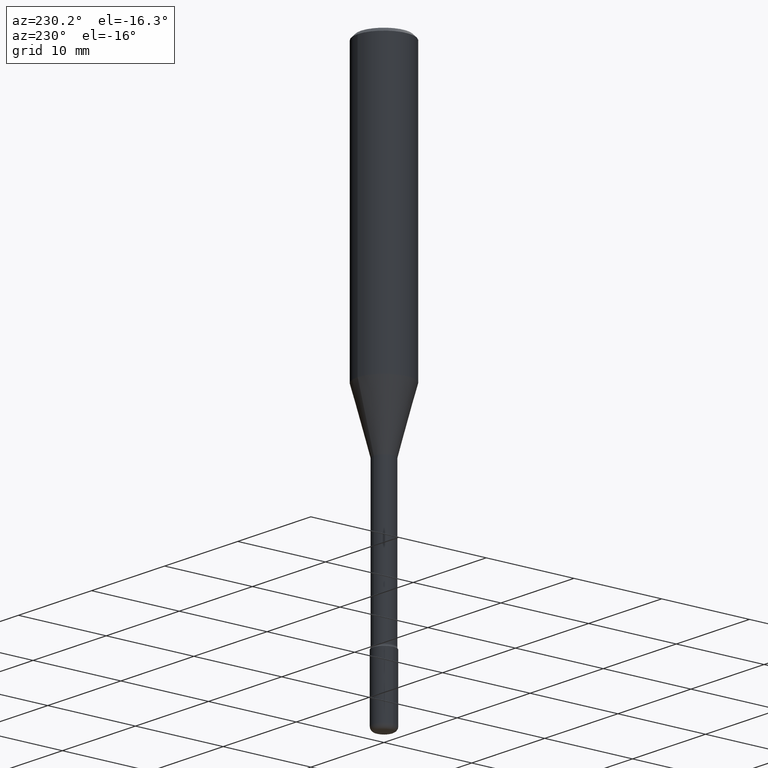
[diagram: clean part render]
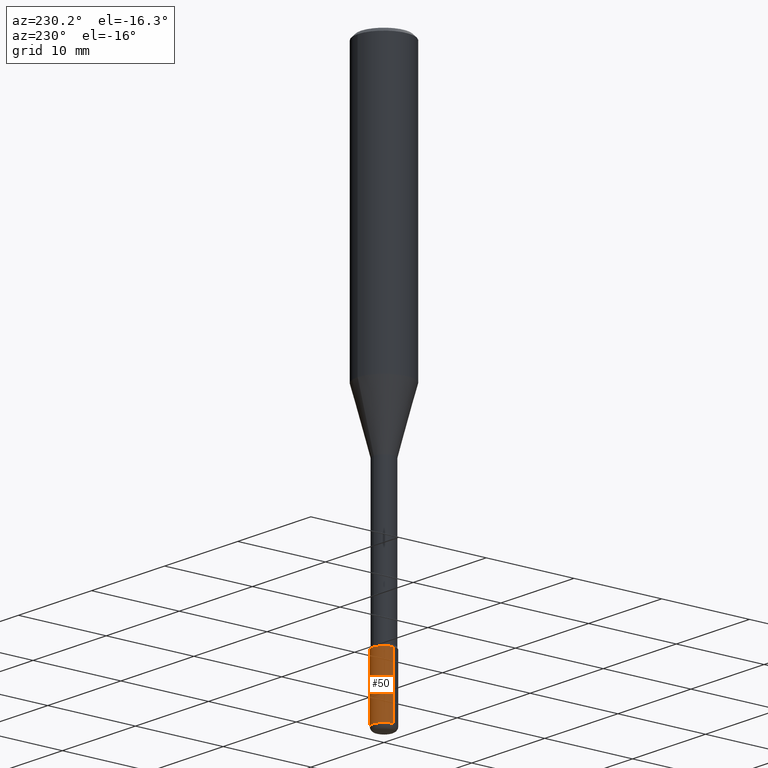
[diagram: same view with one face highlighted and labeled with its STEP entity id]
A machine part, auxiliary view. The second image highlights one B-rep face of the part: STEP entity #50.
In plain terms, the highlighted cylindrical surface (edge-blend (fillet) strip) has radius 1.2497 mm, axis along (-0, 0, 1).
Its self-contained STEP definition (entity closure, byte-faithful):
#17 = CARTESIAN_POINT ( 'NONE',  ( -0.04920000000000008394, -8.310334138738685102E-15, -2.480300000000000171 ) ) ;
#29 = CARTESIAN_POINT ( 'NONE',  ( 0.04920000000000000068, -8.041230671489647649E-15, -2.204700000000000326 ) ) ;
#50 = ADVANCED_FACE ( 'NONE', ( #469 ), #280, .T. ) ;
#55 = VERTEX_POINT ( 'NONE', #29 ) ;
#69 = VERTEX_POINT ( 'NONE', #17 ) ;
#80 = LINE ( 'NONE', #340, #238 ) ;
#110 = CIRCLE ( 'NONE', #537, 0.04920000000000000068 ) ;
#115 = VECTOR ( 'NONE', #437, 39.37007874015748143 ) ;
#120 = CARTESIAN_POINT ( 'NONE',  ( -0.04920000000000000068, 3.495870259939692963E-16, -2.420116064405413767E-30 ) ) ;
#132 = ORIENTED_EDGE ( 'NONE', *, *, #160, .T. ) ;
#146 = EDGE_LOOP ( 'NONE', ( #132, #266, #188, #457 ) ) ;
#154 = DIRECTION ( 'NONE',  ( -2.445468806185136597E-29, 3.491481338843145583E-15, 1.000000000000000000 ) ) ;
#160 = EDGE_CURVE ( 'NONE', #533, #69, #494, .T. ) ;
#161 = CARTESIAN_POINT ( 'NONE',  ( 6.065496279980994755E-29, -8.659921164732655335E-15, -2.480300000000000171 ) ) ;
#188 = ORIENTED_EDGE ( 'NONE', *, *, #381, .F. ) ;
#196 = CARTESIAN_POINT ( 'NONE',  ( 0.04920000000000008394, -9.003482928474821437E-15, -2.480300000000000171 ) ) ;
#238 = VECTOR ( 'NONE', #565, 39.37007874015748143 ) ;
#255 = DIRECTION ( 'NONE',  ( -2.445468806185136597E-29, 3.491481338843145583E-15, 1.000000000000000000 ) ) ;
#266 = ORIENTED_EDGE ( 'NONE', *, *, #282, .T. ) ;
#280 = CYLINDRICAL_SURFACE ( 'NONE', #558, 0.04920000000000000068 ) ;
#282 = EDGE_CURVE ( 'NONE', #69, #491, #526, .T. ) ;
#301 = CARTESIAN_POINT ( 'NONE',  ( 5.391525076996371277E-29, -7.697668907747483125E-15, -2.204700000000000326 ) ) ;
#340 = CARTESIAN_POINT ( 'NONE',  ( 0.04920000000000000068, -3.435617637421643269E-16, 2.399078973691600472E-30 ) ) ;
#360 = DIRECTION ( 'NONE',  ( -2.445468806185136597E-29, 3.491481338843145583E-15, 1.000000000000000000 ) ) ;
#378 = EDGE_CURVE ( 'NONE', #533, #55, #80, .T. ) ;
#381 = EDGE_CURVE ( 'NONE', #55, #491, #110, .T. ) ;
#400 = CARTESIAN_POINT ( 'NONE',  ( -0.04920000000000000068, -7.829208010246099786E-15, -2.204700000000000326 ) ) ;
#408 = DIRECTION ( 'NONE',  ( 1.000000000000000000, -6.982962677686266711E-15, 4.876176775795935793E-29 ) ) ;
#417 = CARTESIAN_POINT ( 'NONE',  ( 0.000000000000000000, 0.000000000000000000, 0.000000000000000000 ) ) ;
#437 = DIRECTION ( 'NONE',  ( -2.445468806185136877E-29, 3.491481338843145188E-15, 1.000000000000000000 ) ) ;
#457 = ORIENTED_EDGE ( 'NONE', *, *, #378, .F. ) ;
#463 = DIRECTION ( 'NONE',  ( 1.000000000000000000, -6.982962677686260400E-15, 0.000000000000000000 ) ) ;
#469 = FACE_OUTER_BOUND ( 'NONE', #146, .T. ) ;
#476 = DIRECTION ( 'NONE',  ( 1.000000000000000000, -6.982962677686261977E-15, 0.000000000000000000 ) ) ;
#491 = VERTEX_POINT ( 'NONE', #400 ) ;
#494 = CIRCLE ( 'NONE', #571, 0.04920000000000000762 ) ;
#526 = LINE ( 'NONE', #120, #115 ) ;
#533 = VERTEX_POINT ( 'NONE', #196 ) ;
#537 = AXIS2_PLACEMENT_3D ( 'NONE', #301, #255, #476 ) ;
#558 = AXIS2_PLACEMENT_3D ( 'NONE', #417, #360, #408 ) ;
#565 = DIRECTION ( 'NONE',  ( -2.445468806185136877E-29, 3.491481338843145188E-15, 1.000000000000000000 ) ) ;
#571 = AXIS2_PLACEMENT_3D ( 'NONE', #161, #154, #463 ) ;